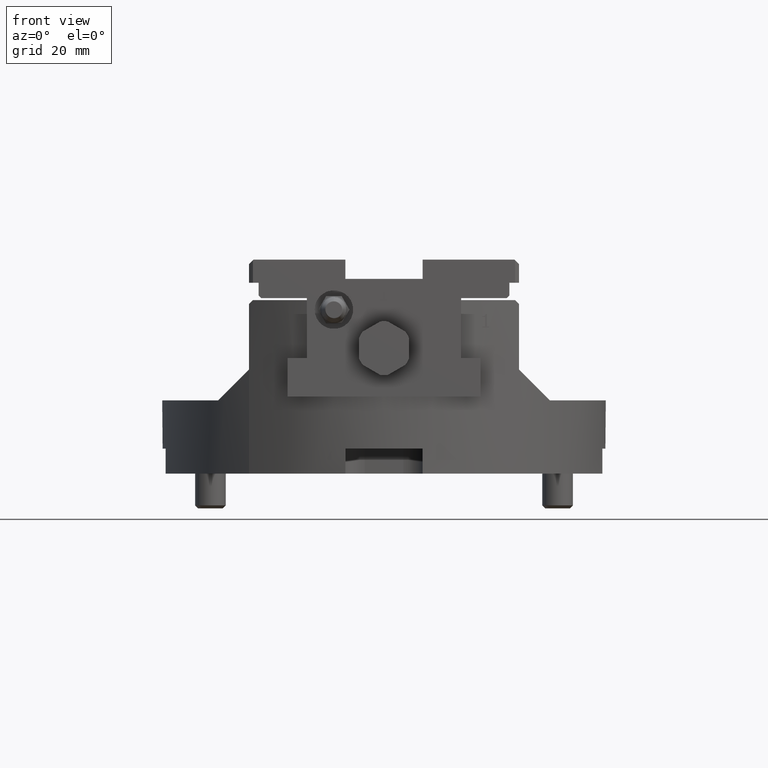
[diagram: clean part render]
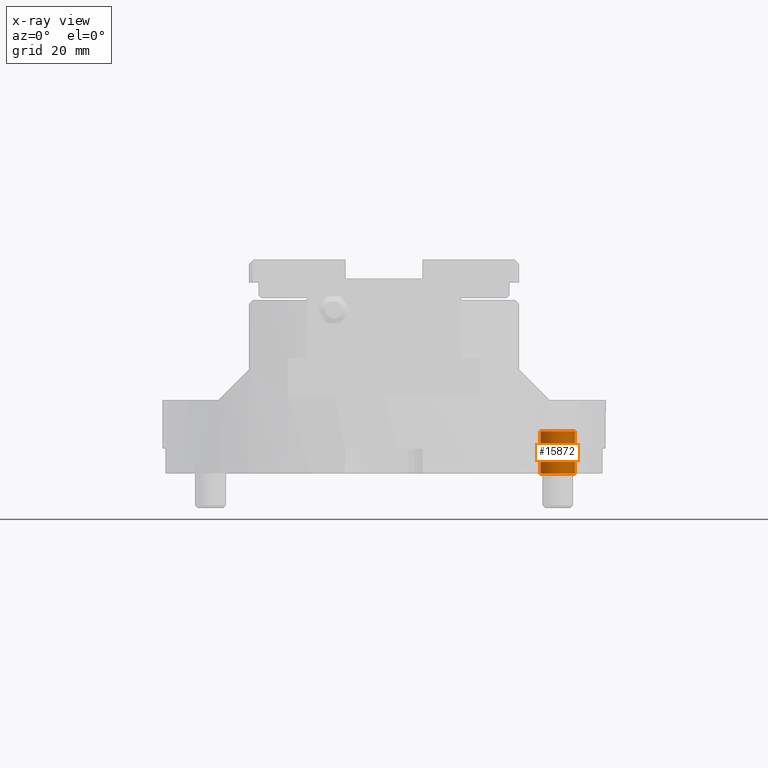
[diagram: x-ray — body ghosted, one internal face saturated and labeled with its STEP entity id]
A machine part, front view, then the same camera in x-ray: the body is ghosted and one INTERNAL B-rep face — a face not visible from any outside direction — is saturated and labeled: STEP entity #15872.
In plain terms, the highlighted cylindrical surface (bore or boss wall) has radius 4.5 mm, axis along (0, 0, 1).
Its self-contained STEP definition (entity closure, byte-faithful):
#1225=CARTESIAN_POINT('',(40.5,-19.999999999999996,10.999999999999961));
#1226=VERTEX_POINT('',#1225);
#1227=CARTESIAN_POINT('',(45.0,-19.999999999999993,10.999999999999961));
#1228=DIRECTION('',(0.0,0.0,1.0));
#1229=DIRECTION('',(1.0,0.0,0.0));
#1230=AXIS2_PLACEMENT_3D('',#1227,#1228,#1229);
#1231=CIRCLE('',#1230,4.5);
#1232=EDGE_CURVE('',#1226,#1226,#1231,.T.);
#15853=CARTESIAN_POINT('',(45.0,-20.000000000000053,-149.7453703068621));
#15854=DIRECTION('',(0.0,3.700743E-016,1.0));
#15855=DIRECTION('',(1.0,0.0,0.0));
#15856=AXIS2_PLACEMENT_3D('',#15853,#15854,#15855);
#15857=CYLINDRICAL_SURFACE('',#15856,4.5);
#15858=CARTESIAN_POINT('',(40.5,-19.999999999999996,0.0));
#15859=VERTEX_POINT('',#15858);
#15860=CARTESIAN_POINT('',(45.0,-19.999999999999996,0.0));
#15861=DIRECTION('',(0.0,0.0,1.0));
#15862=DIRECTION('',(1.0,0.0,0.0));
#15863=AXIS2_PLACEMENT_3D('',#15860,#15861,#15862);
#15864=CIRCLE('',#15863,4.5);
#15865=EDGE_CURVE('',#15859,#15859,#15864,.T.);
#15866=ORIENTED_EDGE('',*,*,#15865,.F.);
#15867=EDGE_LOOP('',(#15866));
#15868=FACE_OUTER_BOUND('',#15867,.T.);
#15869=ORIENTED_EDGE('',*,*,#1232,.T.);
#15870=EDGE_LOOP('',(#15869));
#15871=FACE_BOUND('',#15870,.T.);
#15872=ADVANCED_FACE('',(#15868,#15871),#15857,.F.);